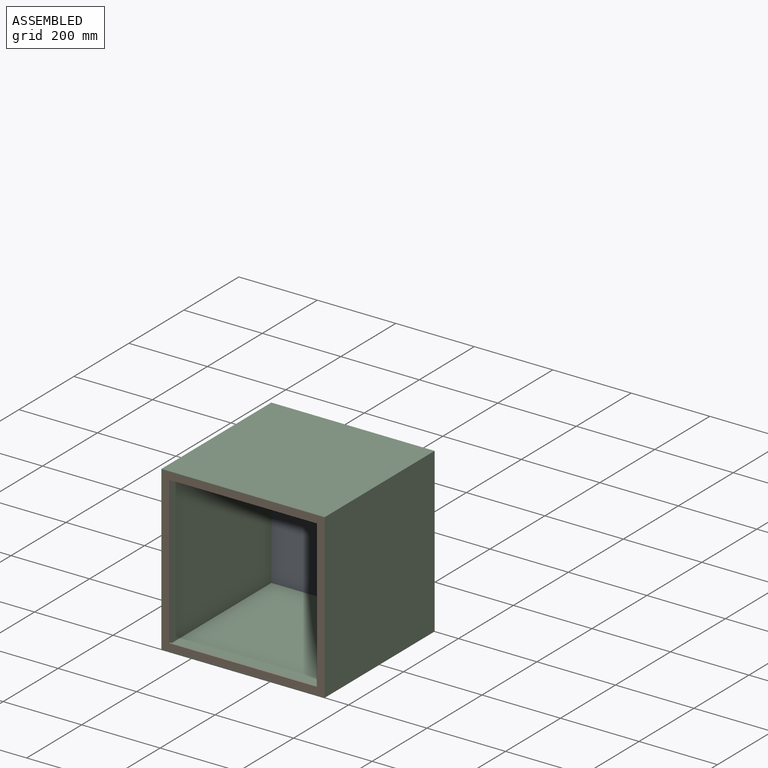
[diagram: assembled view]
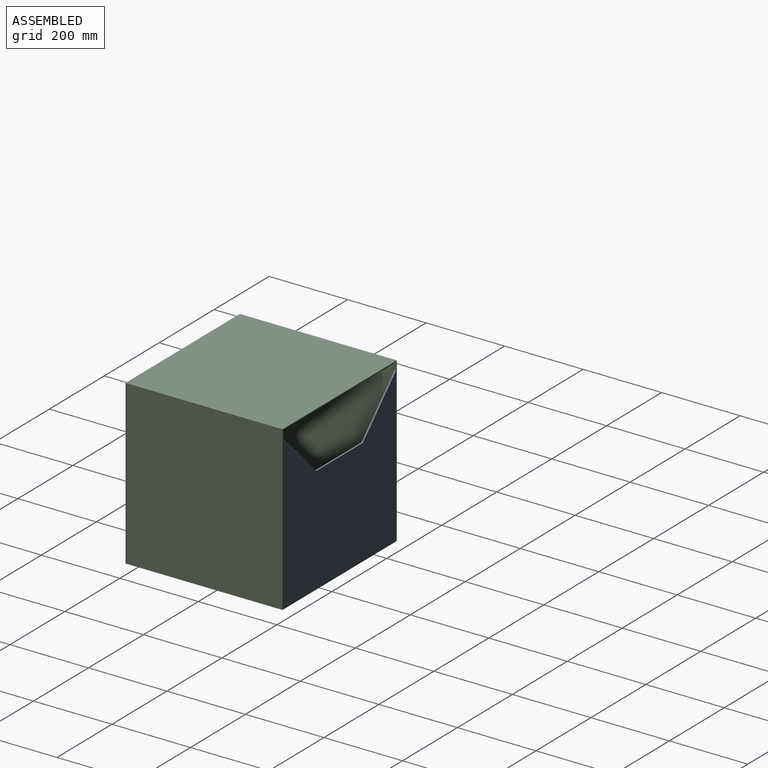
[diagram: assembled view, second angle]
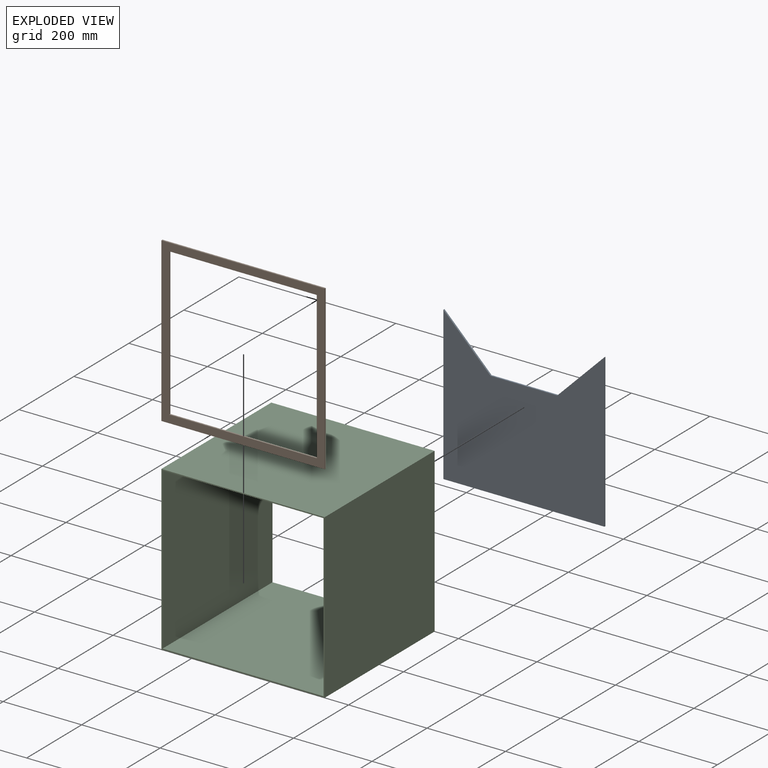
[diagram: exploded view]
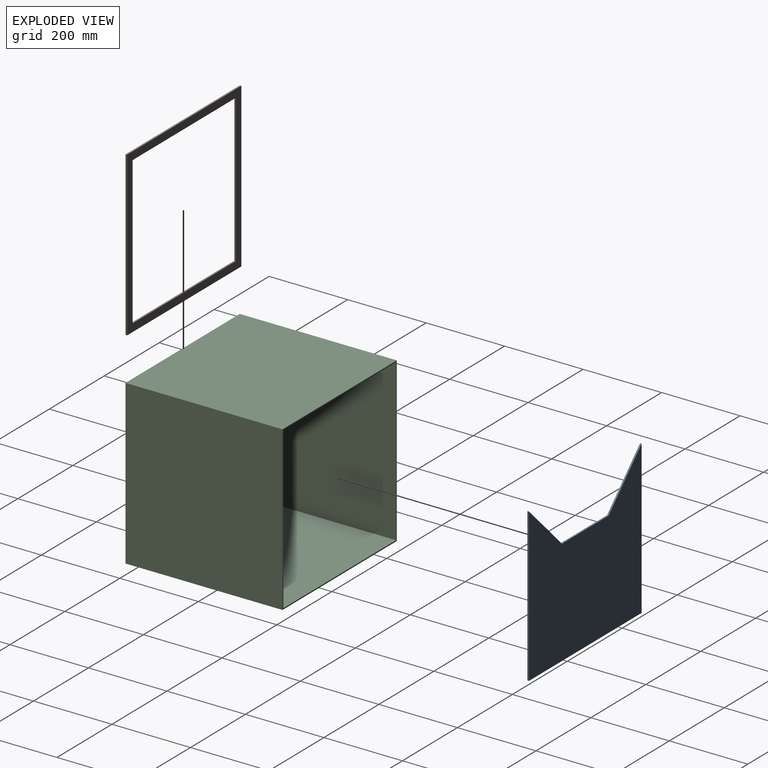
[diagram: exploded view, second angle]
ASSEMBLY  parts=3 mates=2
PART A: 8 faces, bbox 410x4x390 mm
  f0: plane 390x4mm, normal (1,0,0), area 1560mm2, adj f1,f5,f6,f7
  f1: plane 120x120mm, normal (-0.71,0,0.71), area 678.8mm2, adj f0,f2,f6,f7
  f2: plane 170x4mm, normal (0,0,1), area 680mm2, adj f1,f3,f6,f7
  f3: plane 120x120mm, normal (0.71,0,0.71), area 678.8mm2, adj f2,f4,f6,f7
  f4: plane 390x4mm, normal (-1,0,0), area 1560mm2, adj f3,f5,f6,f7
  f5: plane 410x4mm, normal (0,0,-1), area 1640mm2, adj f0,f4,f6,f7
  f6: plane 410x390mm, normal (0,-1,0), area 125100mm2, adj f0,f1,f2,f3,f4,f5
  f7: plane 410x390mm, normal (0,1,0), area 125100mm2, adj f0,f1,f2,f3,f4,f5
PART B: 10 faces, bbox 416x4x416 mm
  f0: plane 376x4mm, normal (0,0,-1), area 1504mm2, adj f1,f7,f8,f9
  f1: plane 376x4mm, normal (-1,0,0), area 1504mm2, adj f0,f2,f8,f9
  f2: plane 376x4mm, normal (0,0,1), area 1504mm2, adj f1,f7,f8,f9
  f3: plane 416x4mm, normal (0,0,1), area 1664mm2, adj f4,f6,f8,f9
  f4: plane 416x4mm, normal (-1,0,0), area 1664mm2, adj f3,f5,f8,f9
  f5: plane 416x4mm, normal (0,0,-1), area 1664mm2, adj f4,f6,f8,f9
  f6: plane 416x4mm, normal (1,0,0), area 1664mm2, adj f3,f5,f8,f9
  f7: plane 376x4mm, normal (1,0,0), area 1504mm2, adj f0,f2,f8,f9
  f8: plane 416x416mm, normal (0,-1,0), area 31680mm2, adj f0,f1,f2,f3,f4,f5,f6,f7
  f9: plane 416x416mm, normal (0,1,0), area 31680mm2, adj f0,f1,f2,f3,f4,f5,f6,f7
PART C: 10 faces, bbox 416x400x416 mm
  f0: plane 416x400mm, normal (1,0,0), area 166400mm2, adj f1,f7,f8,f9
  f1: plane 416x400mm, normal (0,0,1), area 166400mm2, adj f0,f2,f8,f9
  f2: plane 416x400mm, normal (-1,0,0), area 166400mm2, adj f1,f7,f8,f9
  f3: plane 410x400mm, normal (1,0,0), area 164000mm2, adj f4,f6,f8,f9
  f4: plane 410x400mm, normal (0,0,-1), area 164000mm2, adj f3,f5,f8,f9
  f5: plane 410x400mm, normal (-1,0,0), area 164000mm2, adj f4,f6,f8,f9
  f6: plane 410x400mm, normal (0,0,1), area 164000mm2, adj f3,f5,f8,f9
  f7: plane 416x400mm, normal (0,0,-1), area 166400mm2, adj f0,f2,f8,f9
  f8: plane 416x416mm, normal (0,-1,0), area 4956mm2, adj f0,f1,f2,f3,f4,f5,f6,f7
  f9: plane 416x416mm, normal (0,1,0), area 4956mm2, adj f0,f1,f2,f3,f4,f5,f6,f7
PLACE A t=(-92,581.11,-71.61)mm
PLACE B t=(-92,-214.89,-71.61)mm
PLACE C t=(-92,181.11,-71.61)mm
MATE fastened C.f1 <-> B.f3  axis (0,0,1) through (-455.59,-218.89,341.39)mm
MATE fastened A.f7 <-> C.f9  axis (0,1,0) through (-455.59,181.11,-71.61)mm
